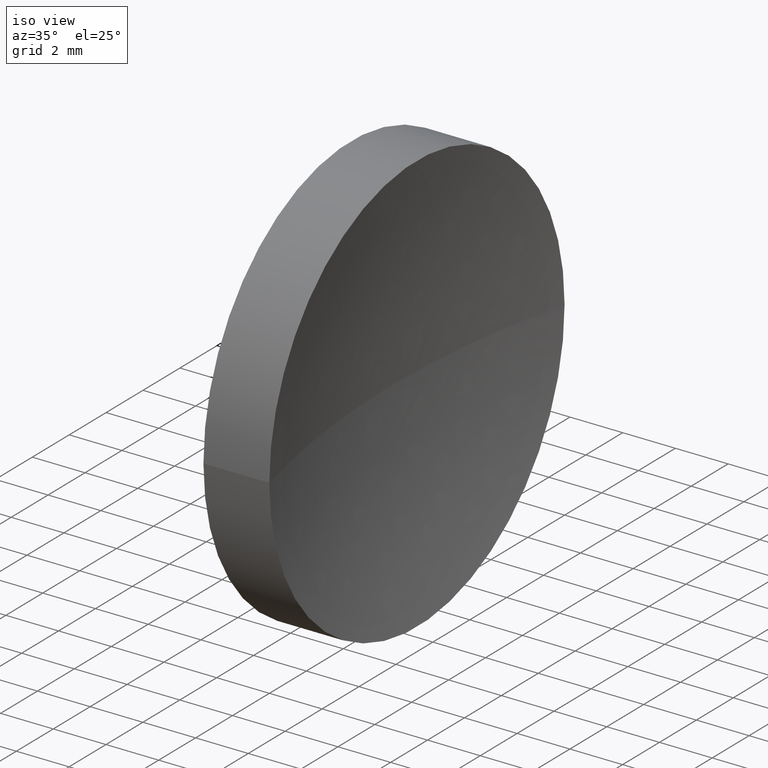
[diagram: clean part render]
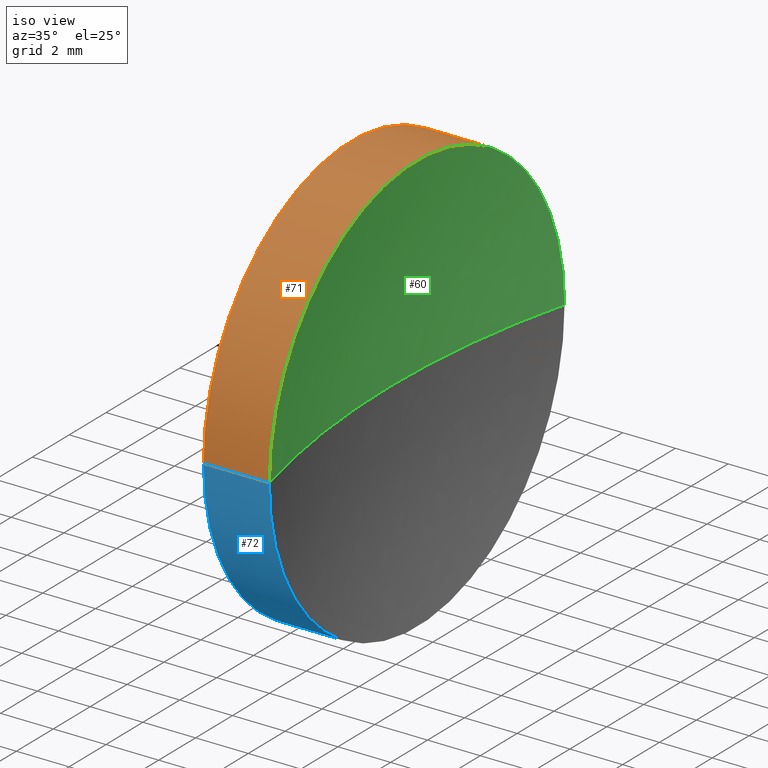
[diagram: same view with three faces highlighted in distinct colors, each labeled with its STEP entity id]
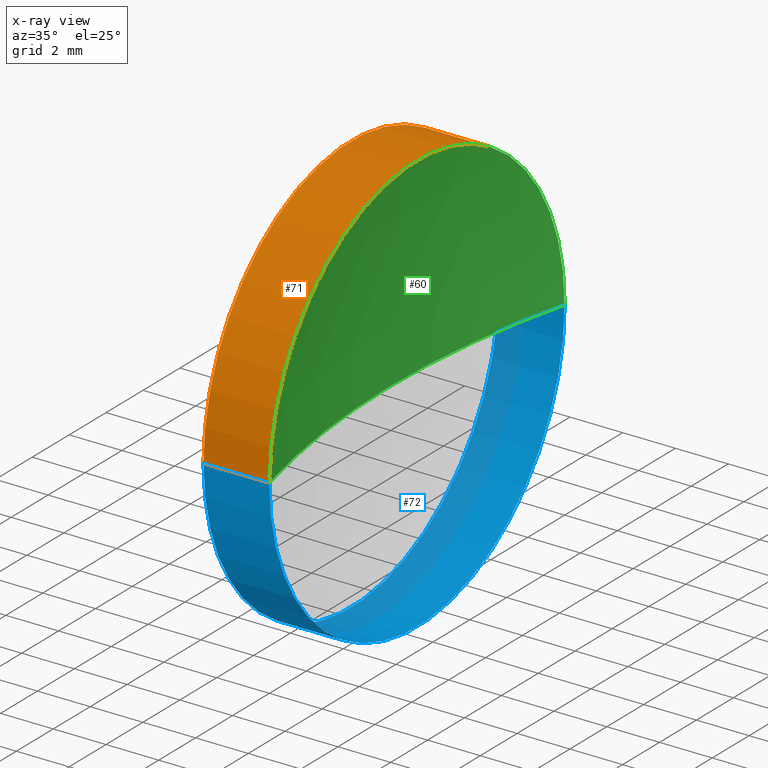
[diagram: x-ray of the same camera — body ghosted, the three highlighted faces saturated]
A machine part, iso view with three faces highlighted in distinct colors.
The next image is the same camera in x-ray (body ghosted, the three faces saturated) — at least one of them is partly hidden behind the body in this view.
Their STEP definitions:

[orange] entity #71 — the highlighted cylindrical surface (partial cylindrical patch) has radius 8 mm, axis along (-1, 0, -0).
#1 = ORIENTED_EDGE ( 'NONE', *, *, #114, .T. ) ;
#5 = AXIS2_PLACEMENT_3D ( 'NONE', #8, #97, #76 ) ;
#8 = CARTESIAN_POINT ( 'NONE',  ( 43.01195023616492100, 26.06225218280608400, 0.0000000000000000000 ) ) ;
#11 = CARTESIAN_POINT ( 'NONE',  ( 44.85442262622448300, 26.06225218280608400, 0.0000000000000000000 ) ) ;
#21 = VERTEX_POINT ( 'NONE', #96 ) ;
#25 = VERTEX_POINT ( 'NONE', #29 ) ;
#29 = CARTESIAN_POINT ( 'NONE',  ( 44.85442262622448300, 34.06225218280608400, 9.797174393178827600E-016 ) ) ;
#32 = DIRECTION ( 'NONE',  ( -1.000000000000000000, 4.058245434298766700E-016, -0.0000000000000000000 ) ) ;
#34 = LINE ( 'NONE', #74, #41 ) ;
#41 = VECTOR ( 'NONE', #86, 1000.000000000000000 ) ;
#50 = FACE_OUTER_BOUND ( 'NONE', #70, .T. ) ;
#53 = AXIS2_PLACEMENT_3D ( 'NONE', #11, #90, #105 ) ;
#57 = VECTOR ( 'NONE', #32, 1000.000000000000000 ) ;
#65 = ORIENTED_EDGE ( 'NONE', *, *, #147, .F. ) ;
#69 = LINE ( 'NONE', #82, #57 ) ;
#70 = EDGE_LOOP ( 'NONE', ( #159, #1, #84, #65 ) ) ;
#71 = ADVANCED_FACE ( 'NONE', ( #50 ), #131, .T. ) ;
#74 = CARTESIAN_POINT ( 'NONE',  ( 43.01195023616492100, 18.06225218280608400, 0.0000000000000000000 ) ) ;
#76 = DIRECTION ( 'NONE',  ( 0.0000000000000000000, -1.000000000000000000, 0.0000000000000000000 ) ) ;
#80 = CIRCLE ( 'NONE', #53, 8.000000000000000000 ) ;
#82 = CARTESIAN_POINT ( 'NONE',  ( 43.01195023616492100, 34.06225218280608400, 9.797174393178827600E-016 ) ) ;
#84 = ORIENTED_EDGE ( 'NONE', *, *, #146, .F. ) ;
#86 = DIRECTION ( 'NONE',  ( -1.000000000000000000, 4.058245434298766700E-016, -0.0000000000000000000 ) ) ;
#87 = VERTEX_POINT ( 'NONE', #124 ) ;
#90 = DIRECTION ( 'NONE',  ( -1.000000000000000000, 4.058245434298766700E-016, -0.0000000000000000000 ) ) ;
#93 = AXIS2_PLACEMENT_3D ( 'NONE', #119, #153, #130 ) ;
#95 = CIRCLE ( 'NONE', #93, 8.000000000000003600 ) ;
#96 = CARTESIAN_POINT ( 'NONE',  ( 44.85442262622448300, 18.06225218280608400, 0.0000000000000000000 ) ) ;
#97 = DIRECTION ( 'NONE',  ( -1.000000000000000000, 4.058245434298766700E-016, -0.0000000000000000000 ) ) ;
#105 = DIRECTION ( 'NONE',  ( 0.0000000000000000000, -1.000000000000000000, 0.0000000000000000000 ) ) ;
#114 = EDGE_CURVE ( 'NONE', #132, #25, #69, .T. ) ;
#119 = CARTESIAN_POINT ( 'NONE',  ( 47.35442262608158600, 26.06225218280608000, 0.0000000000000000000 ) ) ;
#124 = CARTESIAN_POINT ( 'NONE',  ( 47.35442262608158600, 18.06225218280606600, -9.797174393178843400E-016 ) ) ;
#130 = DIRECTION ( 'NONE',  ( 0.0000000000000000000, -1.000000000000000000, 0.0000000000000000000 ) ) ;
#131 = CYLINDRICAL_SURFACE ( 'NONE', #5, 8.000000000000000000 ) ;
#132 = VERTEX_POINT ( 'NONE', #150 ) ;
#146 = EDGE_CURVE ( 'NONE', #21, #25, #80, .T. ) ;
#147 = EDGE_CURVE ( 'NONE', #87, #21, #34, .T. ) ;
#150 = CARTESIAN_POINT ( 'NONE',  ( 47.35442262608158600, 34.06225218280609800, 0.0000000000000000000 ) ) ;
#153 = DIRECTION ( 'NONE',  ( -1.000000000000000000, 4.058245434298766700E-016, -0.0000000000000000000 ) ) ;
#159 = ORIENTED_EDGE ( 'NONE', *, *, #164, .T. ) ;
#164 = EDGE_CURVE ( 'NONE', #87, #132, #95, .T. ) ;

[blue] entity #72 — the highlighted cylindrical surface (partial cylindrical patch) has radius 8 mm, axis along (-1, 0, -0).
#21 = VERTEX_POINT ( 'NONE', #96 ) ;
#22 = AXIS2_PLACEMENT_3D ( 'NONE', #151, #127, #42 ) ;
#25 = VERTEX_POINT ( 'NONE', #29 ) ;
#29 = CARTESIAN_POINT ( 'NONE',  ( 44.85442262622448300, 34.06225218280608400, 9.797174393178827600E-016 ) ) ;
#32 = DIRECTION ( 'NONE',  ( -1.000000000000000000, 4.058245434298766700E-016, -0.0000000000000000000 ) ) ;
#34 = LINE ( 'NONE', #74, #41 ) ;
#35 = ORIENTED_EDGE ( 'NONE', *, *, #40, .T. ) ;
#36 = CARTESIAN_POINT ( 'NONE',  ( 44.85442262622448300, 26.06225218280608400, 0.0000000000000000000 ) ) ;
#40 = EDGE_CURVE ( 'NONE', #132, #87, #134, .T. ) ;
#41 = VECTOR ( 'NONE', #86, 1000.000000000000000 ) ;
#42 = DIRECTION ( 'NONE',  ( 0.0000000000000000000, -1.000000000000000000, 0.0000000000000000000 ) ) ;
#48 = EDGE_CURVE ( 'NONE', #25, #21, #166, .T. ) ;
#52 = ORIENTED_EDGE ( 'NONE', *, *, #114, .F. ) ;
#54 = CARTESIAN_POINT ( 'NONE',  ( 47.35442262608158600, 26.06225218280608000, 0.0000000000000000000 ) ) ;
#55 = AXIS2_PLACEMENT_3D ( 'NONE', #36, #112, #85 ) ;
#57 = VECTOR ( 'NONE', #32, 1000.000000000000000 ) ;
#69 = LINE ( 'NONE', #82, #57 ) ;
#72 = ADVANCED_FACE ( 'NONE', ( #83 ), #99, .T. ) ;
#74 = CARTESIAN_POINT ( 'NONE',  ( 43.01195023616492100, 18.06225218280608400, 0.0000000000000000000 ) ) ;
#82 = CARTESIAN_POINT ( 'NONE',  ( 43.01195023616492100, 34.06225218280608400, 9.797174393178827600E-016 ) ) ;
#83 = FACE_OUTER_BOUND ( 'NONE', #142, .T. ) ;
#85 = DIRECTION ( 'NONE',  ( 0.0000000000000000000, -1.000000000000000000, 0.0000000000000000000 ) ) ;
#86 = DIRECTION ( 'NONE',  ( -1.000000000000000000, 4.058245434298766700E-016, -0.0000000000000000000 ) ) ;
#87 = VERTEX_POINT ( 'NONE', #124 ) ;
#96 = CARTESIAN_POINT ( 'NONE',  ( 44.85442262622448300, 18.06225218280608400, 0.0000000000000000000 ) ) ;
#99 = CYLINDRICAL_SURFACE ( 'NONE', #22, 8.000000000000000000 ) ;
#112 = DIRECTION ( 'NONE',  ( -1.000000000000000000, 4.058245434298766700E-016, -0.0000000000000000000 ) ) ;
#114 = EDGE_CURVE ( 'NONE', #132, #25, #69, .T. ) ;
#124 = CARTESIAN_POINT ( 'NONE',  ( 47.35442262608158600, 18.06225218280606600, -9.797174393178843400E-016 ) ) ;
#126 = DIRECTION ( 'NONE',  ( -1.000000000000000000, 4.058245434298766700E-016, -0.0000000000000000000 ) ) ;
#127 = DIRECTION ( 'NONE',  ( -1.000000000000000000, 4.058245434298766700E-016, -0.0000000000000000000 ) ) ;
#132 = VERTEX_POINT ( 'NONE', #150 ) ;
#133 = AXIS2_PLACEMENT_3D ( 'NONE', #54, #126, #136 ) ;
#134 = CIRCLE ( 'NONE', #133, 8.000000000000003600 ) ;
#136 = DIRECTION ( 'NONE',  ( 0.0000000000000000000, -1.000000000000000000, 0.0000000000000000000 ) ) ;
#140 = ORIENTED_EDGE ( 'NONE', *, *, #147, .T. ) ;
#142 = EDGE_LOOP ( 'NONE', ( #52, #35, #140, #156 ) ) ;
#147 = EDGE_CURVE ( 'NONE', #87, #21, #34, .T. ) ;
#150 = CARTESIAN_POINT ( 'NONE',  ( 47.35442262608158600, 34.06225218280609800, 0.0000000000000000000 ) ) ;
#151 = CARTESIAN_POINT ( 'NONE',  ( 43.01195023616492100, 26.06225218280608400, 0.0000000000000000000 ) ) ;
#156 = ORIENTED_EDGE ( 'NONE', *, *, #48, .F. ) ;
#166 = CIRCLE ( 'NONE', #55, 8.000000000000000000 ) ;

[green] entity #60 — the highlighted spherical surface has radius 32.5 mm.
#3 = ORIENTED_EDGE ( 'NONE', *, *, #162, .T. ) ;
#6 = ORIENTED_EDGE ( 'NONE', *, *, #164, .F. ) ;
#7 = CIRCLE ( 'NONE', #68, 32.50000000000000000 ) ;
#9 = DIRECTION ( 'NONE',  ( 0.0000000000000000000, 1.000000000000000000, 1.224646799147353500E-016 ) ) ;
#10 = CARTESIAN_POINT ( 'NONE',  ( 78.85442262608158600, 26.06225218280607000, 0.0000000000000000000 ) ) ;
#18 = DIRECTION ( 'NONE',  ( 4.270088556250601200E-016, 1.000000000000000000, 0.0000000000000000000 ) ) ;
#20 = DIRECTION ( 'NONE',  ( 0.0000000000000000000, 0.0000000000000000000, -1.000000000000000000 ) ) ;
#27 = CIRCLE ( 'NONE', #77, 32.50000000000000700 ) ;
#46 = DIRECTION ( 'NONE',  ( 0.0000000000000000000, 0.0000000000000000000, 1.000000000000000000 ) ) ;
#47 = VERTEX_POINT ( 'NONE', #59 ) ;
#59 = CARTESIAN_POINT ( 'NONE',  ( 46.35442262608157200, 26.06225218280608400, 0.0000000000000000000 ) ) ;
#60 = ADVANCED_FACE ( 'NONE', ( #128 ), #149, .F. ) ;
#61 = DIRECTION ( 'NONE',  ( 1.000000000000000000, 0.0000000000000000000, 0.0000000000000000000 ) ) ;
#68 = AXIS2_PLACEMENT_3D ( 'NONE', #10, #46, #61 ) ;
#77 = AXIS2_PLACEMENT_3D ( 'NONE', #103, #116, #9 ) ;
#78 = AXIS2_PLACEMENT_3D ( 'NONE', #100, #20, #18 ) ;
#87 = VERTEX_POINT ( 'NONE', #124 ) ;
#93 = AXIS2_PLACEMENT_3D ( 'NONE', #119, #153, #130 ) ;
#95 = CIRCLE ( 'NONE', #93, 8.000000000000003600 ) ;
#100 = CARTESIAN_POINT ( 'NONE',  ( 78.85442262608158600, 26.06225218280607000, 0.0000000000000000000 ) ) ;
#103 = CARTESIAN_POINT ( 'NONE',  ( 78.85442262608158600, 26.06225218280607000, 0.0000000000000000000 ) ) ;
#106 = ORIENTED_EDGE ( 'NONE', *, *, #154, .F. ) ;
#111 = EDGE_LOOP ( 'NONE', ( #6, #3, #106 ) ) ;
#116 = DIRECTION ( 'NONE',  ( 4.969917281268344600E-032, 1.224646799147353200E-016, -1.000000000000000000 ) ) ;
#119 = CARTESIAN_POINT ( 'NONE',  ( 47.35442262608158600, 26.06225218280608000, 0.0000000000000000000 ) ) ;
#124 = CARTESIAN_POINT ( 'NONE',  ( 47.35442262608158600, 18.06225218280606600, -9.797174393178843400E-016 ) ) ;
#128 = FACE_OUTER_BOUND ( 'NONE', #111, .T. ) ;
#130 = DIRECTION ( 'NONE',  ( 0.0000000000000000000, -1.000000000000000000, 0.0000000000000000000 ) ) ;
#132 = VERTEX_POINT ( 'NONE', #150 ) ;
#149 = SPHERICAL_SURFACE ( 'NONE', #78, 32.50000000000000700 ) ;
#150 = CARTESIAN_POINT ( 'NONE',  ( 47.35442262608158600, 34.06225218280609800, 0.0000000000000000000 ) ) ;
#153 = DIRECTION ( 'NONE',  ( -1.000000000000000000, 4.058245434298766700E-016, -0.0000000000000000000 ) ) ;
#154 = EDGE_CURVE ( 'NONE', #132, #47, #7, .T. ) ;
#162 = EDGE_CURVE ( 'NONE', #87, #47, #27, .T. ) ;
#164 = EDGE_CURVE ( 'NONE', #87, #132, #95, .T. ) ;